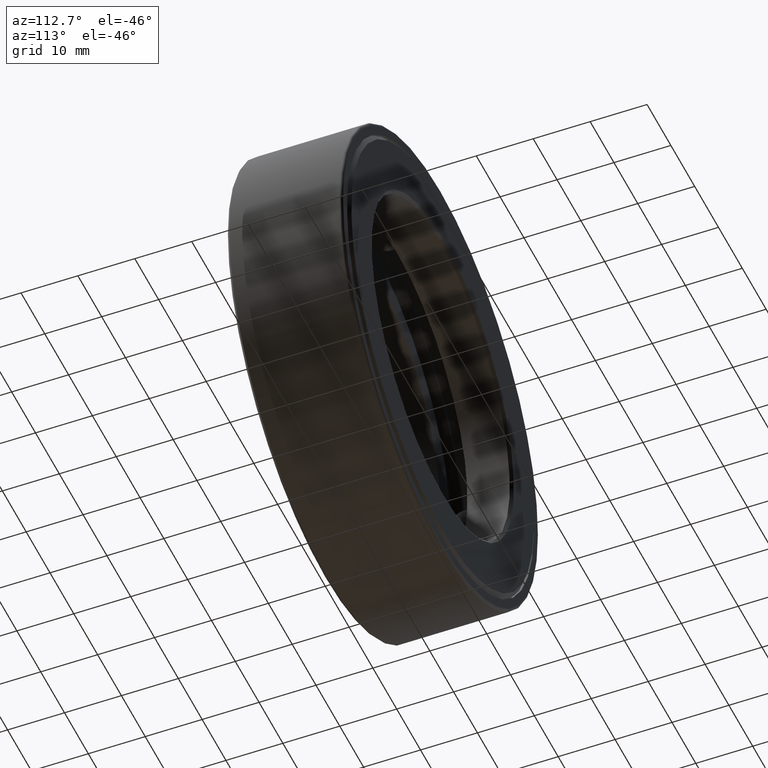
[diagram: clean part render]
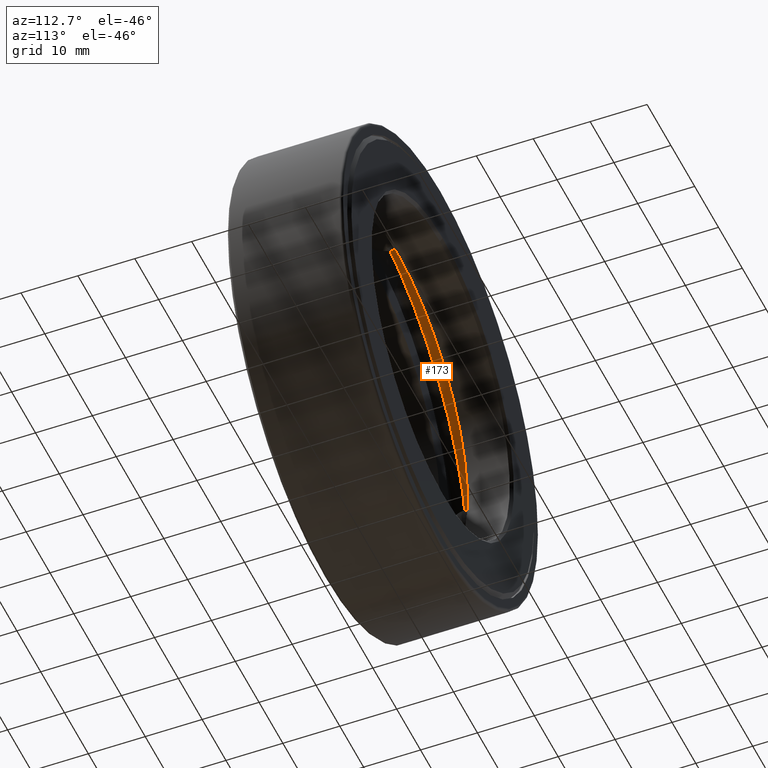
[diagram: same view with one face highlighted and labeled with its STEP entity id]
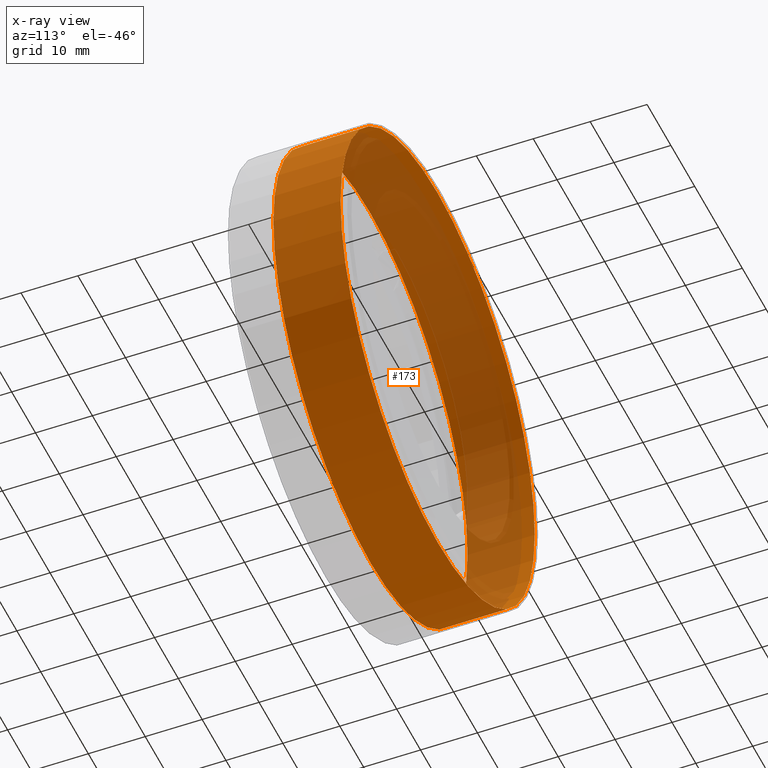
[diagram: x-ray of the same camera — body ghosted, the highlighted face saturated]
A machine part, auxiliary view. The second image highlights one B-rep face of the part: STEP entity #173.
The next image is the same camera in x-ray: the body ghosted, the highlighted face saturated — about 36% of this face is hidden behind the body in this view.
In plain terms, the highlighted cylindrical surface (bore or boss wall) has radius 40.767 mm, axis along (-0, 1, -0).
Its self-contained STEP definition (entity closure, byte-faithful):
#24 = EDGE_LOOP ( 'NONE', ( #193 ) ) ;
#26 = CIRCLE ( 'NONE', #317, 1.605000000000000000 ) ;
#51 = EDGE_LOOP ( 'NONE', ( #221 ) ) ;
#103 = FACE_OUTER_BOUND ( 'NONE', #24, .T. ) ;
#107 = DIRECTION ( 'NONE',  ( 0.0000000000000000000, 0.0000000000000000000, 1.000000000000000000 ) ) ;
#164 = DIRECTION ( 'NONE',  ( 0.0000000000000000000, 0.0000000000000000000, 1.000000000000000000 ) ) ;
#170 = AXIS2_PLACEMENT_3D ( 'NONE', #481, #577, #294 ) ;
#173 = ADVANCED_FACE ( 'NONE', ( #103, #592 ), #273, .F. ) ;
#174 = CARTESIAN_POINT ( 'NONE',  ( 0.0000000000000000000, 0.7774999999999998600, 1.605000000000000000 ) ) ;
#193 = ORIENTED_EDGE ( 'NONE', *, *, #346, .F. ) ;
#221 = ORIENTED_EDGE ( 'NONE', *, *, #546, .T. ) ;
#232 = VERTEX_POINT ( 'NONE', #406 ) ;
#269 = AXIS2_PLACEMENT_3D ( 'NONE', #332, #286, #107 ) ;
#273 = CYLINDRICAL_SURFACE ( 'NONE', #269, 1.605000000000000000 ) ;
#286 = DIRECTION ( 'NONE',  ( -0.0000000000000000000, 1.000000000000000000, -0.0000000000000000000 ) ) ;
#294 = DIRECTION ( 'NONE',  ( 0.0000000000000000000, 0.0000000000000000000, 1.000000000000000000 ) ) ;
#317 = AXIS2_PLACEMENT_3D ( 'NONE', #334, #527, #164 ) ;
#321 = CIRCLE ( 'NONE', #170, 1.605000000000000000 ) ;
#332 = CARTESIAN_POINT ( 'NONE',  ( 0.0000000000000000000, 0.0000000000000000000, 0.0000000000000000000 ) ) ;
#334 = CARTESIAN_POINT ( 'NONE',  ( 0.0000000000000000000, 0.7774999999999998600, 0.0000000000000000000 ) ) ;
#346 = EDGE_CURVE ( 'NONE', #232, #232, #321, .T. ) ;
#406 = CARTESIAN_POINT ( 'NONE',  ( 0.0000000000000000000, 0.3124999999999998900, 1.605000000000000000 ) ) ;
#471 = VERTEX_POINT ( 'NONE', #174 ) ;
#481 = CARTESIAN_POINT ( 'NONE',  ( 0.0000000000000000000, 0.3124999999999998900, 0.0000000000000000000 ) ) ;
#527 = DIRECTION ( 'NONE',  ( -0.0000000000000000000, 1.000000000000000000, -0.0000000000000000000 ) ) ;
#546 = EDGE_CURVE ( 'NONE', #471, #471, #26, .T. ) ;
#577 = DIRECTION ( 'NONE',  ( -0.0000000000000000000, 1.000000000000000000, -0.0000000000000000000 ) ) ;
#592 = FACE_OUTER_BOUND ( 'NONE', #51, .T. ) ;